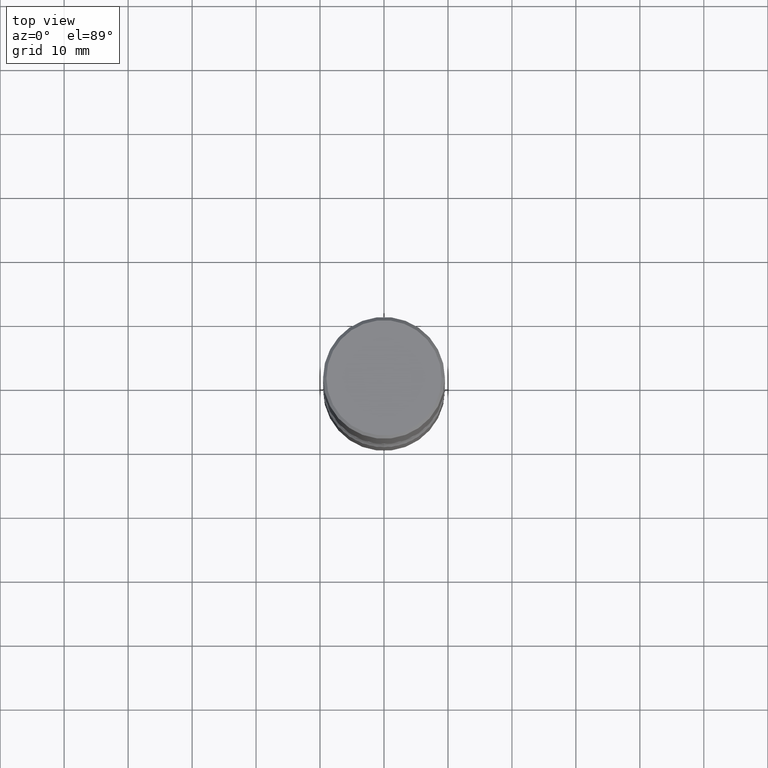
[diagram: clean part render]
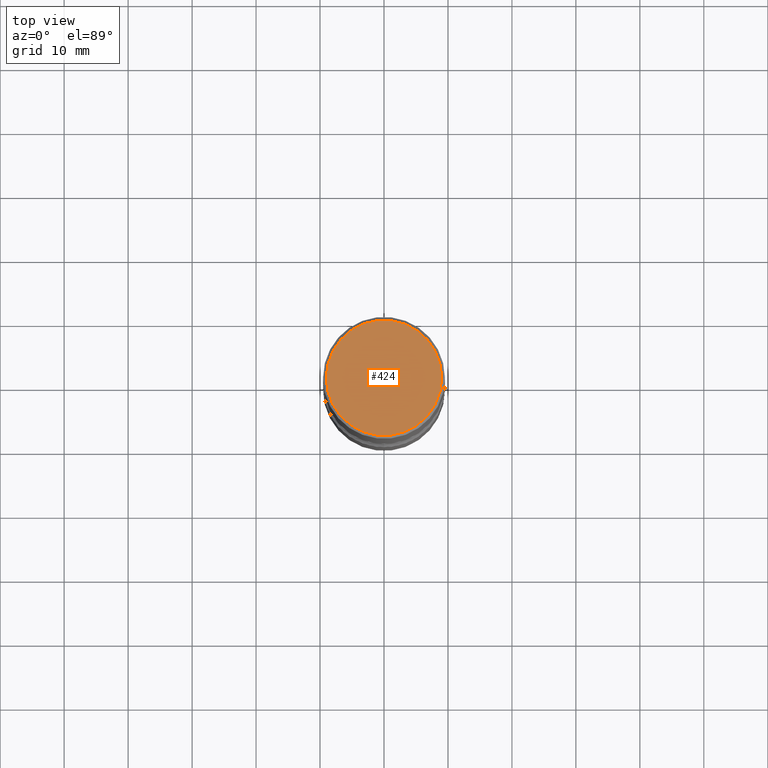
[diagram: same view with one face highlighted and labeled with its STEP entity id]
A machine part, top view. The second image highlights one B-rep face of the part: STEP entity #424.
In plain terms, the highlighted planar face has unit normal (0, -0, -1).
Its self-contained STEP definition (entity closure, byte-faithful):
#66 = CARTESIAN_POINT ( 'NONE',  ( -1.043851414335219820E-46, 1.490343170380447200E-32, 4.268512490100411279E-18 ) ) ;
#81 = CARTESIAN_POINT ( 'NONE',  ( 2.478951750578625787E-15, 0.3550000000000001488, -1.237341619044267019E-15 ) ) ;
#95 = VERTEX_POINT ( 'NONE', #191 ) ;
#99 = DIRECTION ( 'NONE',  ( 1.000000000000000000, -6.982962677686266711E-15, 4.876231632511985941E-29 ) ) ;
#121 = ORIENTED_EDGE ( 'NONE', *, *, #155, .T. ) ;
#139 = CARTESIAN_POINT ( 'NONE',  ( -1.043851414335219820E-46, 1.490343170380447200E-32, 4.268512490100411279E-18 ) ) ;
#155 = EDGE_CURVE ( 'NONE', #241, #95, #556, .T. ) ;
#191 = CARTESIAN_POINT ( 'NONE',  ( -0.3550000000000001488, 2.513866563967057041E-15, 4.268512490082953109E-18 ) ) ;
#201 = DIRECTION ( 'NONE',  ( 1.000000000000000000, -6.982962677686266711E-15, 4.876231632511985941E-29 ) ) ;
#210 = DIRECTION ( 'NONE',  ( -1.000000000000000000, 6.982962677686265922E-15, -4.876176775795935793E-29 ) ) ;
#212 = DIRECTION ( 'NONE',  ( 2.438088387897960049E-29, -3.491481338843145188E-15, -1.000000000000000000 ) ) ;
#232 = DIRECTION ( 'NONE',  ( -2.445468806185136597E-29, 3.491481338843145583E-15, 1.000000000000000000 ) ) ;
#233 = EDGE_LOOP ( 'NONE', ( #397, #121 ) ) ;
#241 = VERTEX_POINT ( 'NONE', #553 ) ;
#297 = FACE_OUTER_BOUND ( 'NONE', #233, .T. ) ;
#314 = AXIS2_PLACEMENT_3D ( 'NONE', #139, #497, #99 ) ;
#331 = AXIS2_PLACEMENT_3D ( 'NONE', #81, #212, #210 ) ;
#369 = EDGE_CURVE ( 'NONE', #95, #241, #435, .T. ) ;
#387 = PLANE ( 'NONE',  #331 ) ;
#397 = ORIENTED_EDGE ( 'NONE', *, *, #369, .T. ) ;
#400 = AXIS2_PLACEMENT_3D ( 'NONE', #66, #232, #201 ) ;
#424 = ADVANCED_FACE ( 'NONE', ( #297 ), #387, .F. ) ;
#435 = CIRCLE ( 'NONE', #400, 0.3550000000000001488 ) ;
#497 = DIRECTION ( 'NONE',  ( -2.445468806185136597E-29, 3.491481338843145583E-15, 1.000000000000000000 ) ) ;
#553 = CARTESIAN_POINT ( 'NONE',  ( 0.3550000000000001488, -2.538996582575041837E-15, 4.268512490117958041E-18 ) ) ;
#556 = CIRCLE ( 'NONE', #314, 0.3550000000000001488 ) ;